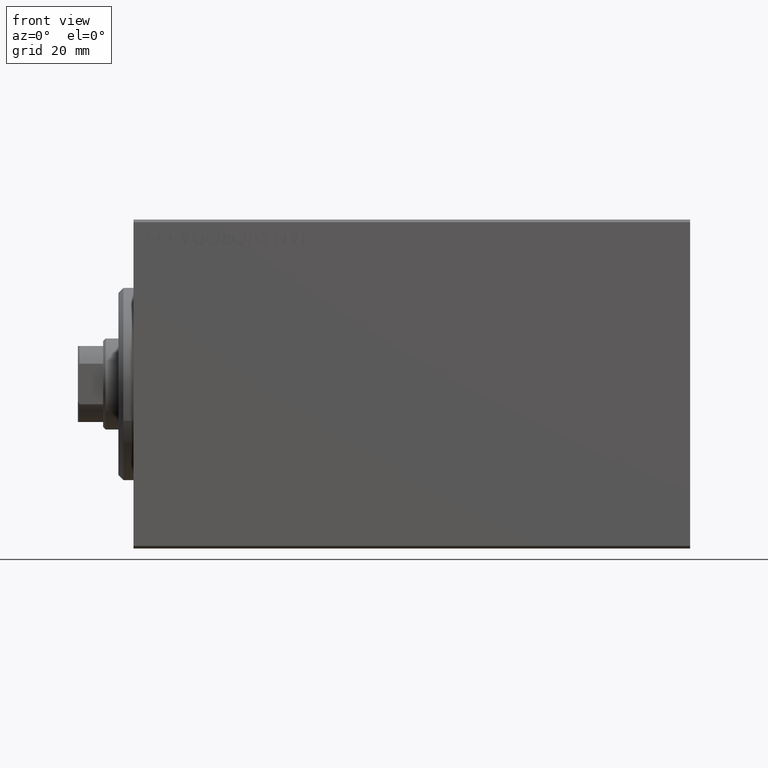
[diagram: clean part render]
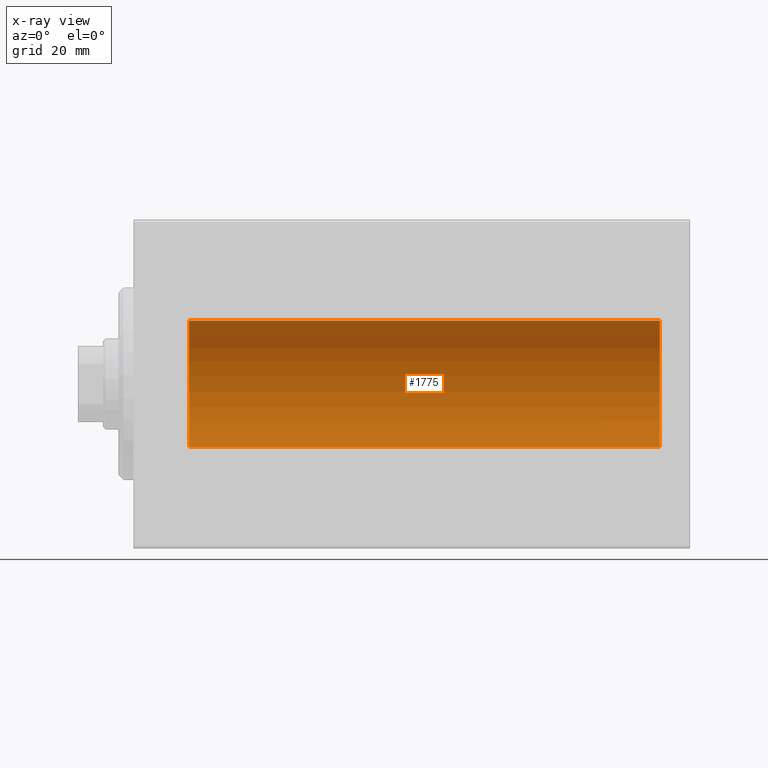
[diagram: x-ray — body ghosted, one internal face saturated and labeled with its STEP entity id]
A machine part, front view, then the same camera in x-ray: the body is ghosted and one INTERNAL B-rep face — a face not visible from any outside direction — is saturated and labeled: STEP entity #1775.
In plain terms, the highlighted cylindrical surface (partial cylindrical patch) has radius 12.5 mm, axis along (-1, -0, -0).
Its self-contained STEP definition (entity closure, byte-faithful):
#839 = CARTESIAN_POINT ( 'NONE',  ( 104.0000000000000000, 1.530808498934191127E-15, -12.50000000000000000 ) ) ;
#1775 = ADVANCED_FACE ( 'NONE', ( #34929 ), #4583, .F. ) ;
#3166 = VERTEX_POINT ( 'NONE', #5424 ) ;
#4380 = DIRECTION ( 'NONE',  ( -1.000000000000000000, -0.000000000000000000, -0.000000000000000000 ) ) ;
#4583 = CYLINDRICAL_SURFACE ( 'NONE', #11260, 12.50000000000000000 ) ;
#5424 = CARTESIAN_POINT ( 'NONE',  ( 10.99999999999999645, 0.000000000000000000, 12.50000000000000000 ) ) ;
#5835 = VECTOR ( 'NONE', #32595, 1000.000000000000000 ) ;
#5944 = CARTESIAN_POINT ( 'NONE',  ( 10.99999999999999645, 1.530808498934191127E-15, -12.50000000000000000 ) ) ;
#6165 = VERTEX_POINT ( 'NONE', #27995 ) ;
#8881 = CARTESIAN_POINT ( 'NONE',  ( 104.0000000000000000, 0.000000000000000000, 12.50000000000000000 ) ) ;
#9218 = DIRECTION ( 'NONE',  ( 0.000000000000000000, 0.000000000000000000, 1.000000000000000000 ) ) ;
#9651 = VERTEX_POINT ( 'NONE', #5944 ) ;
#10058 = ORIENTED_EDGE ( 'NONE', *, *, #30312, .F. ) ;
#11260 = AXIS2_PLACEMENT_3D ( 'NONE', #21647, #18103, #28302 ) ;
#12014 = LINE ( 'NONE', #15558, #5835 ) ;
#15558 = CARTESIAN_POINT ( 'NONE',  ( 104.0000000000000000, 0.000000000000000000, 12.50000000000000000 ) ) ;
#15598 = CARTESIAN_POINT ( 'NONE',  ( 10.99999999999999645, 0.000000000000000000, 0.000000000000000000 ) ) ;
#16732 = DIRECTION ( 'NONE',  ( -1.000000000000000000, 0.000000000000000000, 0.000000000000000000 ) ) ;
#18103 = DIRECTION ( 'NONE',  ( -1.000000000000000000, -0.000000000000000000, -0.000000000000000000 ) ) ;
#18732 = CIRCLE ( 'NONE', #24396, 12.50000000000000000 ) ;
#19559 = DIRECTION ( 'NONE',  ( 0.000000000000000000, 0.000000000000000000, 1.000000000000000000 ) ) ;
#21197 = ORIENTED_EDGE ( 'NONE', *, *, #35298, .T. ) ;
#21647 = CARTESIAN_POINT ( 'NONE',  ( 104.0000000000000000, 0.000000000000000000, 0.000000000000000000 ) ) ;
#22014 = ORIENTED_EDGE ( 'NONE', *, *, #28984, .T. ) ;
#22885 = DIRECTION ( 'NONE',  ( -1.000000000000000000, 0.000000000000000000, 0.000000000000000000 ) ) ;
#24396 = AXIS2_PLACEMENT_3D ( 'NONE', #39551, #16732, #9218 ) ;
#24970 = VECTOR ( 'NONE', #4380, 1000.000000000000000 ) ;
#27459 = VERTEX_POINT ( 'NONE', #8881 ) ;
#27995 = CARTESIAN_POINT ( 'NONE',  ( 104.0000000000000000, 1.530808498934191127E-15, -12.50000000000000000 ) ) ;
#28302 = DIRECTION ( 'NONE',  ( 0.000000000000000000, 0.000000000000000000, 1.000000000000000000 ) ) ;
#28984 = EDGE_CURVE ( 'NONE', #27459, #3166, #12014, .T. ) ;
#29359 = CIRCLE ( 'NONE', #39933, 12.50000000000000000 ) ;
#30312 = EDGE_CURVE ( 'NONE', #6165, #9651, #30546, .T. ) ;
#30546 = LINE ( 'NONE', #839, #24970 ) ;
#32595 = DIRECTION ( 'NONE',  ( -1.000000000000000000, -0.000000000000000000, -0.000000000000000000 ) ) ;
#34929 = FACE_OUTER_BOUND ( 'NONE', #40869, .T. ) ;
#35298 = EDGE_CURVE ( 'NONE', #3166, #9651, #29359, .T. ) ;
#35882 = EDGE_CURVE ( 'NONE', #27459, #6165, #18732, .T. ) ;
#36168 = ORIENTED_EDGE ( 'NONE', *, *, #35882, .F. ) ;
#39551 = CARTESIAN_POINT ( 'NONE',  ( 104.0000000000000000, 0.000000000000000000, 0.000000000000000000 ) ) ;
#39933 = AXIS2_PLACEMENT_3D ( 'NONE', #15598, #22885, #19559 ) ;
#40869 = EDGE_LOOP ( 'NONE', ( #10058, #36168, #22014, #21197 ) ) ;